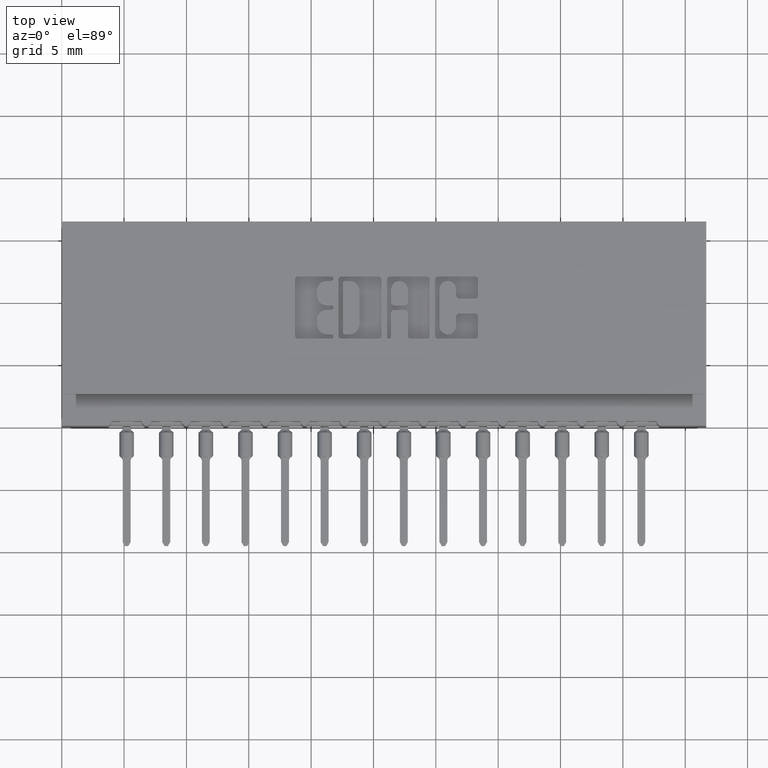
[diagram: clean part render]
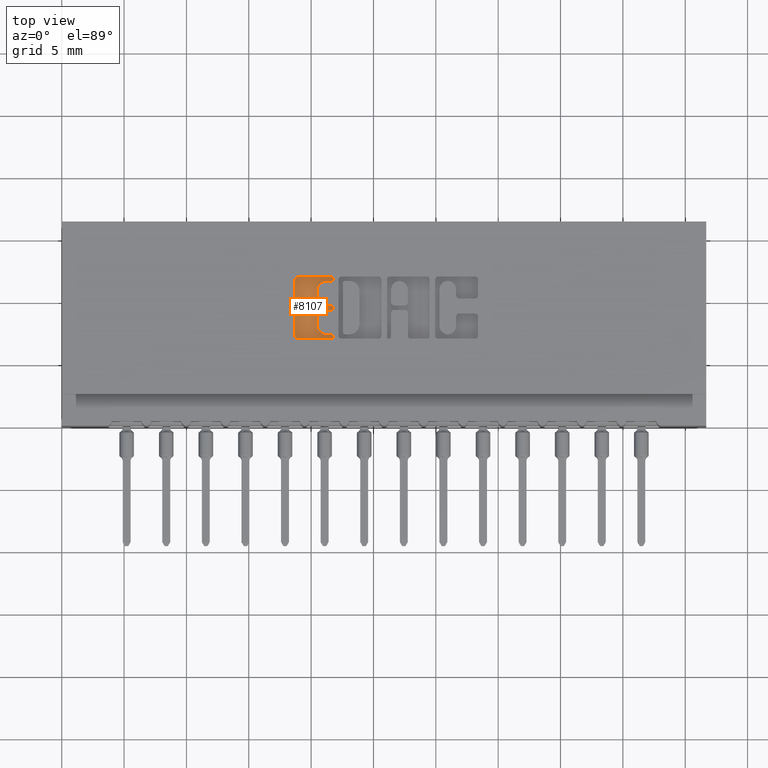
[diagram: same view with one face highlighted and labeled with its STEP entity id]
A machine part, top view. The second image highlights one B-rep face of the part: STEP entity #8107.
In plain terms, the highlighted planar face has unit normal (0, 0, 1).
Its self-contained STEP definition (entity closure, byte-faithful):
#126 = CARTESIAN_POINT ( 'NONE',  ( 0.7365264404161154799, 0.0000000000000000000, -0.01000000000000000021 ) ) ;
#164 = ORIENTED_EDGE ( 'NONE', *, *, #2401, .T. ) ;
#187 = CARTESIAN_POINT ( 'NONE',  ( 0.8506336065353100606, 0.3725000000000204259, -0.01000000000000000021 ) ) ;
#286 = ORIENTED_EDGE ( 'NONE', *, *, #19428, .T. ) ;
#334 = DIRECTION ( 'NONE',  ( 1.000000000000000000, 0.0000000000000000000, 0.0000000000000000000 ) ) ;
#439 = AXIS2_PLACEMENT_3D ( 'NONE', #1514, #5195, #11013 ) ;
#543 = DIRECTION ( 'NONE',  ( -0.0000000000000000000, 0.0000000000000000000, 1.000000000000000000 ) ) ;
#778 = VERTEX_POINT ( 'NONE', #11366 ) ;
#818 = CARTESIAN_POINT ( 'NONE',  ( 0.8371370600051096789, 0.3194953808994904221, -0.01000000000000000021 ) ) ;
#951 = DIRECTION ( 'NONE',  ( -0.0000000000000000000, 0.0000000000000000000, 1.000000000000000000 ) ) ;
#1116 = CARTESIAN_POINT ( 'NONE',  ( 0.7463421106199222832, 0.2841589681657900046, -0.01000000000000000021 ) ) ;
#1243 = VERTEX_POINT ( 'NONE', #22383 ) ;
#1514 = CARTESIAN_POINT ( 'NONE',  ( 0.8506336065353513609, 0.4637857328953863267, -0.01000000000000000021 ) ) ;
#1586 = DIRECTION ( 'NONE',  ( 1.000000000000000000, 0.0000000000000000000, 0.0000000000000000000 ) ) ;
#1664 = CARTESIAN_POINT ( 'NONE',  ( 0.8057269153529278416, 0.3342188862052006271, -0.01000000000000000021 ) ) ;
#1665 = CARTESIAN_POINT ( 'NONE',  ( 0.0000000000000000000, 0.4706567020380327815, -0.01000000000000000021 ) ) ;
#1912 = ORIENTED_EDGE ( 'NONE', *, *, #16167, .T. ) ;
#1956 = EDGE_CURVE ( 'NONE', #1243, #21262, #22958, .T. ) ;
#2127 = DIRECTION ( 'NONE',  ( -0.0000000000000000000, 0.0000000000000000000, 1.000000000000000000 ) ) ;
#2401 = EDGE_CURVE ( 'NONE', #20028, #7098, #16431, .T. ) ;
#2460 = DIRECTION ( 'NONE',  ( -0.0000000000000000000, 0.0000000000000000000, 1.000000000000000000 ) ) ;
#2488 = CARTESIAN_POINT ( 'NONE',  ( 0.8506336065353355957, 0.2812142671046480302, -0.01000000000000000021 ) ) ;
#2706 = DIRECTION ( 'NONE',  ( -0.0000000000000000000, 0.0000000000000000000, 1.000000000000000000 ) ) ;
#2818 = CARTESIAN_POINT ( 'NONE',  ( 0.8506336065353100606, 0.3725000000000204259, -0.01000000000000000021 ) ) ;
#3015 = AXIS2_PLACEMENT_3D ( 'NONE', #2488, #2127, #6061 ) ;
#3375 = ORIENTED_EDGE ( 'NONE', *, *, #14649, .T. ) ;
#3444 = ORIENTED_EDGE ( 'NONE', *, *, #14303, .T. ) ;
#3494 = VECTOR ( 'NONE', #22336, 39.37007874015748143 ) ;
#3738 = DIRECTION ( 'NONE',  ( 1.000000000000000000, 0.0000000000000000000, 0.0000000000000000000 ) ) ;
#3940 = VERTEX_POINT ( 'NONE', #4353 ) ;
#4353 = CARTESIAN_POINT ( 'NONE',  ( 0.7365264404161154799, 0.2841589681657900046, -0.01000000000000000021 ) ) ;
#4378 = DIRECTION ( 'NONE',  ( 1.000000000000000000, 0.0000000000000000000, 0.0000000000000000000 ) ) ;
#4407 = AXIS2_PLACEMENT_3D ( 'NONE', #1116, #14829, #12667 ) ;
#4630 = PLANE ( 'NONE',  #6914 ) ;
#5021 = ORIENTED_EDGE ( 'NONE', *, *, #20578, .F. ) ;
#5195 = DIRECTION ( 'NONE',  ( -0.0000000000000000000, 0.0000000000000000000, 1.000000000000000000 ) ) ;
#5255 = CARTESIAN_POINT ( 'NONE',  ( 0.8057269153529278416, 0.0000000000000000000, -0.01000000000000000021 ) ) ;
#5394 = CARTESIAN_POINT ( 'NONE',  ( 0.8506336064154144117, 0.2880852362473102501, -0.01000000000000000021 ) ) ;
#5528 = DIRECTION ( 'NONE',  ( 1.000000000000000000, 0.0000000000000000000, 0.0000000000000000000 ) ) ;
#5584 = AXIS2_PLACEMENT_3D ( 'NONE', #21890, #2460, #12363 ) ;
#5670 = ORIENTED_EDGE ( 'NONE', *, *, #6576, .F. ) ;
#5672 = DIRECTION ( 'NONE',  ( 1.000000000000000000, 0.0000000000000000000, 0.0000000000000000000 ) ) ;
#5800 = LINE ( 'NONE', #17481, #21335 ) ;
#6061 = DIRECTION ( 'NONE',  ( 1.000000000000000000, 0.0000000000000000000, 0.0000000000000000000 ) ) ;
#6468 = VERTEX_POINT ( 'NONE', #12376 ) ;
#6576 = EDGE_CURVE ( 'NONE', #14528, #20525, #18289, .T. ) ;
#6914 = AXIS2_PLACEMENT_3D ( 'NONE', #20120, #2706, #10445 ) ;
#7098 = VERTEX_POINT ( 'NONE', #11914 ) ;
#7444 = CARTESIAN_POINT ( 'NONE',  ( 0.7463421106199380484, 0.4706567020380327815, -0.01000000000000000021 ) ) ;
#7527 = CARTESIAN_POINT ( 'NONE',  ( 0.8057269153529096339, 0.4255046191005198430, -0.01000000000000000021 ) ) ;
#7938 = EDGE_CURVE ( 'NONE', #25064, #20525, #13649, .T. ) ;
#8107 = ADVANCED_FACE ( 'NONE', ( #22010 ), #4630, .T. ) ;
#8790 = VECTOR ( 'NONE', #12993, 39.37007874015748143 ) ;
#9018 = AXIS2_PLACEMENT_3D ( 'NONE', #9198, #9321, #5528 ) ;
#9198 = CARTESIAN_POINT ( 'NONE',  ( 0.8506336065353355957, 0.2812142671046480302, -0.01000000000000000021 ) ) ;
#9201 = CARTESIAN_POINT ( 'NONE',  ( -1.976217237646387043E-15, 0.2743432979619796486, -0.01000000000000000021 ) ) ;
#9206 = CARTESIAN_POINT ( 'NONE',  ( 0.8371370600050840327, 0.4107811137948584324, -0.01000000000000000021 ) ) ;
#9215 = ORIENTED_EDGE ( 'NONE', *, *, #13817, .T. ) ;
#9233 = CIRCLE ( 'NONE', #5584, 0.03141014465221578927 ) ;
#9321 = DIRECTION ( 'NONE',  ( -0.0000000000000000000, 0.0000000000000000000, 1.000000000000000000 ) ) ;
#9628 = CARTESIAN_POINT ( 'NONE',  ( 0.8371370600050840327, 0.3793709691426839226, -0.01000000000000000021 ) ) ;
#10079 = VERTEX_POINT ( 'NONE', #20446 ) ;
#10259 = LINE ( 'NONE', #11927, #11199 ) ;
#10361 = DIRECTION ( 'NONE',  ( -0.0000000000000000000, 0.0000000000000000000, 1.000000000000000000 ) ) ;
#10445 = DIRECTION ( 'NONE',  ( 1.000000000000000000, 0.0000000000000000000, 0.0000000000000000000 ) ) ;
#10845 = DIRECTION ( 'NONE',  ( -0.0000000000000000000, 0.0000000000000000000, 1.000000000000000000 ) ) ;
#11013 = DIRECTION ( 'NONE',  ( 1.000000000000000000, 0.0000000000000000000, 0.0000000000000000000 ) ) ;
#11181 = DIRECTION ( 'NONE',  ( -1.000000000000000000, 0.0000000000000000000, 0.0000000000000000000 ) ) ;
#11199 = VECTOR ( 'NONE', #18027, 39.37007874015748143 ) ;
#11219 = DIRECTION ( 'NONE',  ( -0.0000000000000000000, 0.0000000000000000000, 1.000000000000000000 ) ) ;
#11319 = DIRECTION ( 'NONE',  ( 0.0000000000000000000, -1.000000000000000000, 0.0000000000000000000 ) ) ;
#11338 = AXIS2_PLACEMENT_3D ( 'NONE', #9206, #10845, #1586 ) ;
#11366 = CARTESIAN_POINT ( 'NONE',  ( 0.8371370600051096789, 0.2880852362473086403, -0.01000000000000000021 ) ) ;
#11861 = DIRECTION ( 'NONE',  ( -1.000000000000000000, 0.0000000000000000000, 0.0000000000000000000 ) ) ;
#11914 = CARTESIAN_POINT ( 'NONE',  ( 0.8506336065353513609, 0.4706567020380327815, -0.01000000000000000021 ) ) ;
#11927 = CARTESIAN_POINT ( 'NONE',  ( -3.425805886175743989E-14, 0.2880852362472091088, -0.01000000000000000021 ) ) ;
#12097 = VECTOR ( 'NONE', #11181, 39.37007874015748143 ) ;
#12121 = DIRECTION ( 'NONE',  ( 1.000000000000000000, 0.0000000000000000000, 0.0000000000000000000 ) ) ;
#12333 = CARTESIAN_POINT ( 'NONE',  ( 0.8371370600050840327, 0.3656290308573568737, -0.01000000000000000021 ) ) ;
#12363 = DIRECTION ( 'NONE',  ( 1.000000000000000000, 0.0000000000000000000, 0.0000000000000000000 ) ) ;
#12376 = CARTESIAN_POINT ( 'NONE',  ( 0.8575045756779736683, 0.3725000000000204259, -0.01000000000000000021 ) ) ;
#12549 = ORIENTED_EDGE ( 'NONE', *, *, #22419, .T. ) ;
#12558 = CARTESIAN_POINT ( 'NONE',  ( 0.0000000000000000000, 0.3656290308573568737, -0.01000000000000000021 ) ) ;
#12667 = DIRECTION ( 'NONE',  ( 1.000000000000000000, 0.0000000000000000000, 0.0000000000000000000 ) ) ;
#12759 = VERTEX_POINT ( 'NONE', #5394 ) ;
#12993 = DIRECTION ( 'NONE',  ( 0.0000000000000000000, 1.000000000000000000, -0.0000000000000000000 ) ) ;
#13123 = LINE ( 'NONE', #5255, #8790 ) ;
#13281 = CARTESIAN_POINT ( 'NONE',  ( 0.7463421106199185084, 0.2743432979619850332, -0.01000000000000000021 ) ) ;
#13489 = EDGE_CURVE ( 'NONE', #14528, #17931, #5800, .T. ) ;
#13507 = AXIS2_PLACEMENT_3D ( 'NONE', #2818, #543, #4378 ) ;
#13649 = LINE ( 'NONE', #15313, #22739 ) ;
#13817 = EDGE_CURVE ( 'NONE', #15865, #24133, #20509, .T. ) ;
#13828 = DIRECTION ( 'NONE',  ( -0.0000000000000000000, 0.0000000000000000000, 1.000000000000000000 ) ) ;
#14226 = CIRCLE ( 'NONE', #15468, 0.03141014465215623969 ) ;
#14303 = EDGE_CURVE ( 'NONE', #21874, #3940, #17174, .T. ) ;
#14400 = ORIENTED_EDGE ( 'NONE', *, *, #24358, .T. ) ;
#14526 = DIRECTION ( 'NONE',  ( 1.000000000000000000, 0.0000000000000000000, 0.0000000000000000000 ) ) ;
#14528 = VERTEX_POINT ( 'NONE', #24009 ) ;
#14545 = EDGE_LOOP ( 'NONE', ( #17267, #21332, #21571, #164, #18270, #22127, #3444, #17099, #9215, #12549, #286, #16268, #21779, #1912, #5021, #3375, #24000, #14400, #23127, #5670, #19745 ) ) ;
#14649 = EDGE_CURVE ( 'NONE', #21586, #15450, #16749, .T. ) ;
#14829 = DIRECTION ( 'NONE',  ( -0.0000000000000000000, 0.0000000000000000000, 1.000000000000000000 ) ) ;
#14909 = DIRECTION ( 'NONE',  ( 1.000000000000000000, 7.203446383881645102E-15, 0.0000000000000000000 ) ) ;
#15022 = EDGE_CURVE ( 'NONE', #24095, #21874, #17304, .T. ) ;
#15055 = CIRCLE ( 'NONE', #439, 0.006870969142648433205 ) ;
#15067 = CARTESIAN_POINT ( 'NONE',  ( 0.0000000000000000000, 0.4569147637527357642, -0.01000000000000000021 ) ) ;
#15114 = EDGE_CURVE ( 'NONE', #12759, #778, #10259, .T. ) ;
#15313 = CARTESIAN_POINT ( 'NONE',  ( 0.0000000000000000000, 0.3793709691426839226, -0.01000000000000000021 ) ) ;
#15450 = VERTEX_POINT ( 'NONE', #23224 ) ;
#15468 = AXIS2_PLACEMENT_3D ( 'NONE', #21923, #10361, #334 ) ;
#15865 = VERTEX_POINT ( 'NONE', #13281 ) ;
#16036 = EDGE_CURVE ( 'NONE', #1243, #17931, #9233, .T. ) ;
#16056 = VECTOR ( 'NONE', #11319, 39.37007874015748143 ) ;
#16167 = EDGE_CURVE ( 'NONE', #23425, #25153, #13123, .T. ) ;
#16268 = ORIENTED_EDGE ( 'NONE', *, *, #15114, .T. ) ;
#16431 = CIRCLE ( 'NONE', #22546, 0.006870969142648433205 ) ;
#16566 = CARTESIAN_POINT ( 'NONE',  ( 0.8506336064154144117, 0.2743432979619857548, -0.01000000000000000021 ) ) ;
#16749 = LINE ( 'NONE', #12558, #3494 ) ;
#17099 = ORIENTED_EDGE ( 'NONE', *, *, #19103, .T. ) ;
#17174 = LINE ( 'NONE', #126, #16056 ) ;
#17239 = EDGE_CURVE ( 'NONE', #15450, #6468, #20206, .T. ) ;
#17267 = ORIENTED_EDGE ( 'NONE', *, *, #16036, .F. ) ;
#17287 = LINE ( 'NONE', #1665, #12097 ) ;
#17304 = CIRCLE ( 'NONE', #20124, 0.009815670203822599721 ) ;
#17311 = CARTESIAN_POINT ( 'NONE',  ( 0.8575045756779998696, 0.4637857328953863267, -0.01000000000000000021 ) ) ;
#17481 = CARTESIAN_POINT ( 'NONE',  ( 0.8057269153529096339, 0.0000000000000000000, -0.01000000000000000021 ) ) ;
#17530 = CARTESIAN_POINT ( 'NONE',  ( 0.7463421106199380484, 0.4608410318342101575, -0.01000000000000000021 ) ) ;
#17772 = AXIS2_PLACEMENT_3D ( 'NONE', #187, #19881, #12121 ) ;
#17931 = VERTEX_POINT ( 'NONE', #7527 ) ;
#18027 = DIRECTION ( 'NONE',  ( -1.000000000000000000, -1.189163988687022540E-13, 0.0000000000000000000 ) ) ;
#18270 = ORIENTED_EDGE ( 'NONE', *, *, #18888, .T. ) ;
#18289 = CIRCLE ( 'NONE', #11338, 0.03141014465217440571 ) ;
#18367 = CIRCLE ( 'NONE', #13507, 0.006870969142663594688 ) ;
#18866 = CARTESIAN_POINT ( 'NONE',  ( 0.8506336065353513609, 0.4637857328953863267, -0.01000000000000000021 ) ) ;
#18888 = EDGE_CURVE ( 'NONE', #7098, #24095, #17287, .T. ) ;
#18944 = CARTESIAN_POINT ( 'NONE',  ( 0.8057269153529278416, 0.3194953808994904221, -0.01000000000000000021 ) ) ;
#19103 = EDGE_CURVE ( 'NONE', #3940, #15865, #21043, .T. ) ;
#19362 = CARTESIAN_POINT ( 'NONE',  ( 0.8506336065353513609, 0.4569147637527357642, -0.01000000000000000021 ) ) ;
#19428 = EDGE_CURVE ( 'NONE', #10079, #12759, #23734, .T. ) ;
#19691 = VECTOR ( 'NONE', #5672, 39.37007874015748143 ) ;
#19745 = ORIENTED_EDGE ( 'NONE', *, *, #13489, .T. ) ;
#19820 = DIRECTION ( 'NONE',  ( 1.000000000000000000, 0.0000000000000000000, 0.0000000000000000000 ) ) ;
#19881 = DIRECTION ( 'NONE',  ( -0.0000000000000000000, 0.0000000000000000000, 1.000000000000000000 ) ) ;
#19978 = CIRCLE ( 'NONE', #9018, 0.006870969142662229460 ) ;
#20028 = VERTEX_POINT ( 'NONE', #17311 ) ;
#20120 = CARTESIAN_POINT ( 'NONE',  ( 0.0000000000000000000, 0.0000000000000000000, -0.01000000000000000021 ) ) ;
#20124 = AXIS2_PLACEMENT_3D ( 'NONE', #17530, #13828, #19820 ) ;
#20206 = CIRCLE ( 'NONE', #17772, 0.006870969142663594688 ) ;
#20287 = EDGE_CURVE ( 'NONE', #21262, #20028, #15055, .T. ) ;
#20446 = CARTESIAN_POINT ( 'NONE',  ( 0.8575045756779977602, 0.2812142671046480302, -0.01000000000000000021 ) ) ;
#20509 = LINE ( 'NONE', #9201, #20512 ) ;
#20512 = VECTOR ( 'NONE', #14909, 39.37007874015748143 ) ;
#20525 = VERTEX_POINT ( 'NONE', #9628 ) ;
#20578 = EDGE_CURVE ( 'NONE', #21586, #25153, #14226, .T. ) ;
#20807 = CIRCLE ( 'NONE', #20830, 0.03141014465218178175 ) ;
#20830 = AXIS2_PLACEMENT_3D ( 'NONE', #818, #951, #14526 ) ;
#21043 = CIRCLE ( 'NONE', #4407, 0.009815670203805935967 ) ;
#21262 = VERTEX_POINT ( 'NONE', #19362 ) ;
#21332 = ORIENTED_EDGE ( 'NONE', *, *, #1956, .T. ) ;
#21335 = VECTOR ( 'NONE', #23203, 39.37007874015748143 ) ;
#21571 = ORIENTED_EDGE ( 'NONE', *, *, #20287, .T. ) ;
#21586 = VERTEX_POINT ( 'NONE', #12333 ) ;
#21779 = ORIENTED_EDGE ( 'NONE', *, *, #23999, .F. ) ;
#21874 = VERTEX_POINT ( 'NONE', #21957 ) ;
#21890 = CARTESIAN_POINT ( 'NONE',  ( 0.8371370600051254440, 0.4255046191005198430, -0.01000000000000000021 ) ) ;
#21923 = CARTESIAN_POINT ( 'NONE',  ( 0.8371370600050840327, 0.3342188862052006271, -0.01000000000000000021 ) ) ;
#21957 = CARTESIAN_POINT ( 'NONE',  ( 0.7365264404161154799, 0.4608410318342101575, -0.01000000000000000021 ) ) ;
#22010 = FACE_OUTER_BOUND ( 'NONE', #14545, .T. ) ;
#22127 = ORIENTED_EDGE ( 'NONE', *, *, #15022, .T. ) ;
#22336 = DIRECTION ( 'NONE',  ( 1.000000000000000000, 0.0000000000000000000, 0.0000000000000000000 ) ) ;
#22383 = CARTESIAN_POINT ( 'NONE',  ( 0.8371370600051254440, 0.4569147637527357642, -0.01000000000000000021 ) ) ;
#22419 = EDGE_CURVE ( 'NONE', #24133, #10079, #19978, .T. ) ;
#22546 = AXIS2_PLACEMENT_3D ( 'NONE', #18866, #11219, #3738 ) ;
#22739 = VECTOR ( 'NONE', #11861, 39.37007874015748143 ) ;
#22958 = LINE ( 'NONE', #15067, #19691 ) ;
#23127 = ORIENTED_EDGE ( 'NONE', *, *, #7938, .T. ) ;
#23203 = DIRECTION ( 'NONE',  ( 0.0000000000000000000, 1.000000000000000000, -0.0000000000000000000 ) ) ;
#23224 = CARTESIAN_POINT ( 'NONE',  ( 0.8506336064153888765, 0.3656290308573568737, -0.01000000000000000021 ) ) ;
#23425 = VERTEX_POINT ( 'NONE', #18944 ) ;
#23734 = CIRCLE ( 'NONE', #3015, 0.006870969142662229460 ) ;
#23999 = EDGE_CURVE ( 'NONE', #23425, #778, #20807, .T. ) ;
#24000 = ORIENTED_EDGE ( 'NONE', *, *, #17239, .T. ) ;
#24009 = CARTESIAN_POINT ( 'NONE',  ( 0.8057269153529096339, 0.4107811137948584324, -0.01000000000000000021 ) ) ;
#24095 = VERTEX_POINT ( 'NONE', #7444 ) ;
#24133 = VERTEX_POINT ( 'NONE', #16566 ) ;
#24358 = EDGE_CURVE ( 'NONE', #6468, #25064, #18367, .T. ) ;
#24923 = CARTESIAN_POINT ( 'NONE',  ( 0.8506336065353100606, 0.3793709691426839226, -0.01000000000000000021 ) ) ;
#25064 = VERTEX_POINT ( 'NONE', #24923 ) ;
#25153 = VERTEX_POINT ( 'NONE', #1664 ) ;